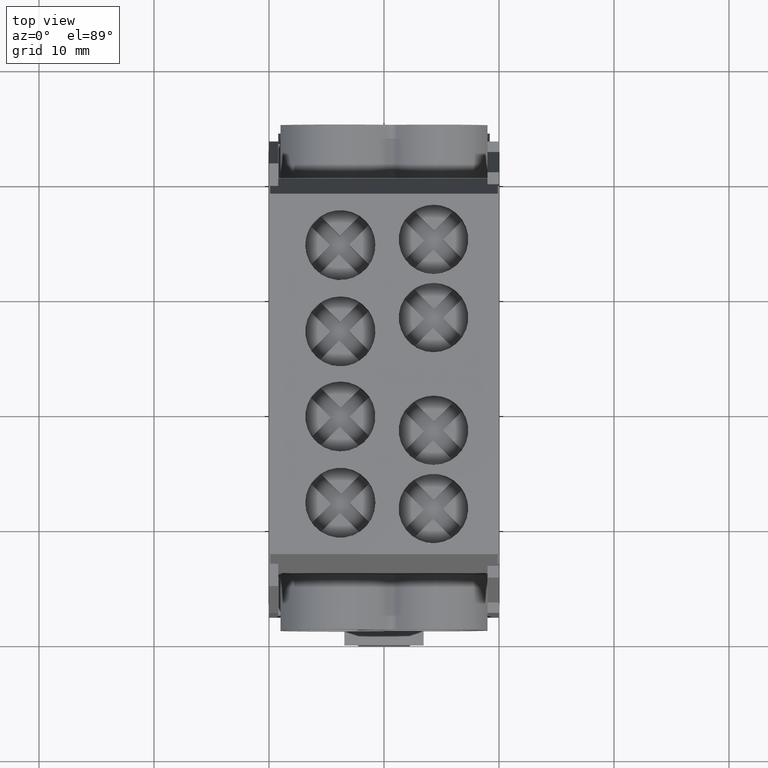
[diagram: clean part render]
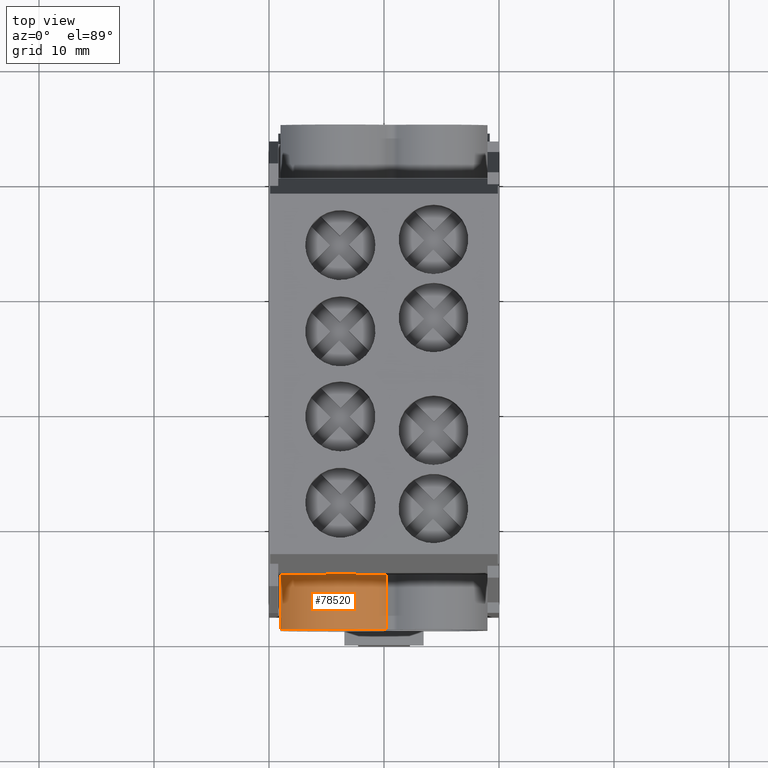
[diagram: same view with one face highlighted and labeled with its STEP entity id]
A machine part, top view. The second image highlights one B-rep face of the part: STEP entity #78520.
In plain terms, the highlighted cylindrical surface (partial cylindrical patch) has radius 6.05 mm, axis along (-0, -1, -0).
Its self-contained STEP definition (entity closure, byte-faithful):
#14450=CARTESIAN_POINT('',(0.169149574278847,-17.15,-17.1793598142852));
#14460=VERTEX_POINT('',#14450);
#14490=CARTESIAN_POINT('',(-3.80000000000001,-17.15,-21.745359338705));
#14500=DIRECTION('',(-2.77555756156289E-16,-1.,-5.80952514931361E-16));
#14510=DIRECTION('',(0.656057780872538,-6.20543672441896E-16,
0.754710665193358));
#14520=AXIS2_PLACEMENT_3D('',#14490,#14500,#14510);
#14530=CIRCLE('',#14520,6.05);
#14540=CARTESIAN_POINT('',(-9.00000000000001,-17.15,-18.6530301194918));
#14550=VERTEX_POINT('',#14540);
#14560=EDGE_CURVE('',#14460,#14550,#14530,.T.);
#74390=CARTESIAN_POINT('',(-3.80000000000001,-21.95,-21.745359338705));
#74400=DIRECTION('',(-2.77555756156289E-16,-1.,-5.80952514931361E-16));
#74410=DIRECTION('',(0.656057780872538,-6.20543672441896E-16,
0.754710665193358));
#74420=AXIS2_PLACEMENT_3D('',#74390,#74400,#74410);
#74430=CIRCLE('',#74420,6.05);
#74440=CARTESIAN_POINT('',(0.169149574278843,-21.95,-17.1793598142852));
#74450=VERTEX_POINT('',#74440);
#74460=CARTESIAN_POINT('',(-9.00000000000001,-21.95,-18.6530301194918));
#74470=VERTEX_POINT('',#74460);
#74480=EDGE_CURVE('',#74450,#74470,#74430,.T.);
#78180=CARTESIAN_POINT('',(0.169149574278843,-21.95,-17.1793598142852));
#78190=DIRECTION('',(2.77555756156289E-16,1.,5.80952514931361E-16));
#78200=VECTOR('',#78190,1.);
#78210=LINE('',#78180,#78200);
#78220=EDGE_CURVE('',#74450,#14460,#78210,.T.);
#78360=CARTESIAN_POINT('',(-3.80000000000001,-21.95,-21.745359338705));
#78370=DIRECTION('',(-2.77555756156289E-16,-1.,-5.80952514931361E-16));
#78380=DIRECTION('',(0.656057780872538,-6.20543672441896E-16,
0.754710665193358));
#78390=AXIS2_PLACEMENT_3D('',#78360,#78370,#78380);
#78400=CYLINDRICAL_SURFACE('',#78390,6.05);
#78410=ORIENTED_EDGE('',*,*,#74480,.F.);
#78420=CARTESIAN_POINT('',(-9.00000000000001,-21.95,-18.6530301194918));
#78430=DIRECTION('',(2.77555756156289E-16,1.,5.80952514931361E-16));
#78440=VECTOR('',#78430,1.);
#78450=LINE('',#78420,#78440);
#78460=EDGE_CURVE('',#74470,#14550,#78450,.T.);
#78470=ORIENTED_EDGE('',*,*,#78460,.F.);
#78480=ORIENTED_EDGE('',*,*,#14560,.T.);
#78490=ORIENTED_EDGE('',*,*,#78220,.T.);
#78500=EDGE_LOOP('',(#78490,#78480,#78470,#78410));
#78510=FACE_OUTER_BOUND('',#78500,.T.);
#78520=ADVANCED_FACE('',(#78510),#78400,.T.);